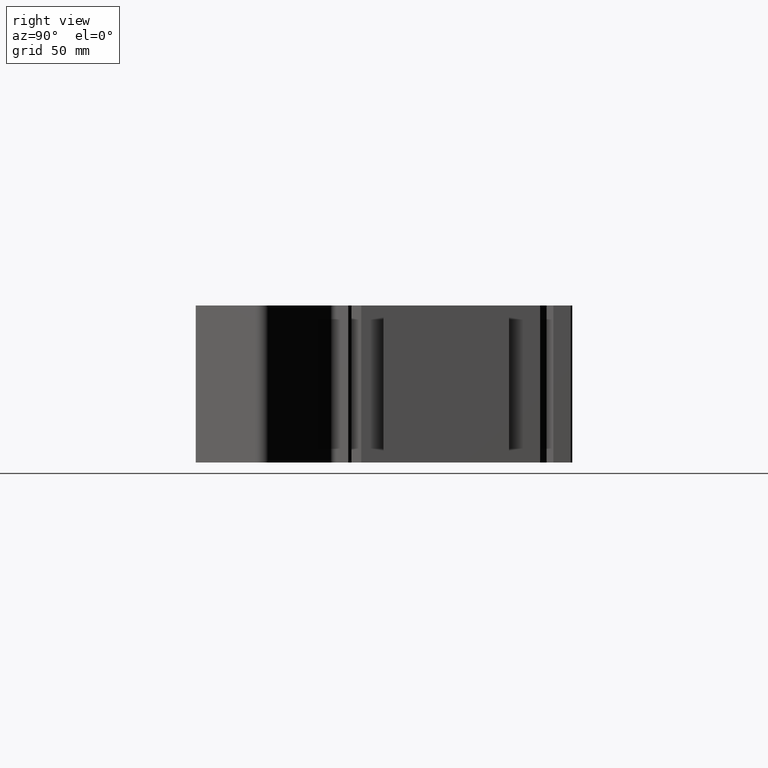
[diagram: clean part render]
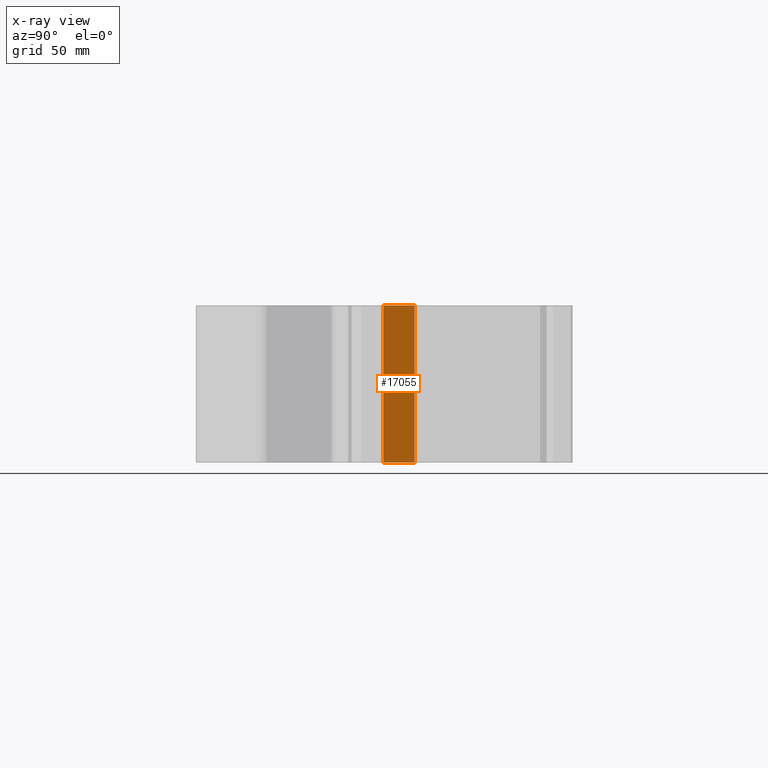
[diagram: x-ray — body ghosted, one internal face saturated and labeled with its STEP entity id]
A machine part, right view, then the same camera in x-ray: the body is ghosted and one INTERNAL B-rep face — a face not visible from any outside direction — is saturated and labeled: STEP entity #17055.
In plain terms, the highlighted planar face has unit normal (-1, -0, 0).
Its self-contained STEP definition (entity closure, byte-faithful):
#15972=DIRECTION('',(0.E0,-1.E0,0.E0));
#15973=VECTOR('',#15972,2.E1);
#15974=CARTESIAN_POINT('',(7.211265260376E0,6.114122744063E1,0.E0));
#15975=LINE('',#15974,#15973);
#15986=DIRECTION('',(0.E0,0.E0,1.E0));
#15987=VECTOR('',#15986,1.E2);
#15988=CARTESIAN_POINT('',(7.211265260376E0,4.114122744063E1,0.E0));
#15989=LINE('',#15988,#15987);
#16242=DIRECTION('',(0.E0,-1.E0,0.E0));
#16243=VECTOR('',#16242,2.E1);
#16244=CARTESIAN_POINT('',(7.211265260376E0,6.114122744063E1,1.E2));
#16245=LINE('',#16244,#16243);
#16249=DIRECTION('',(0.E0,0.E0,1.E0));
#16250=VECTOR('',#16249,1.E2);
#16251=CARTESIAN_POINT('',(7.211265260376E0,6.114122744063E1,0.E0));
#16252=LINE('',#16251,#16250);
#16350=CARTESIAN_POINT('',(7.211265260376E0,4.114122744063E1,0.E0));
#16352=VERTEX_POINT('',#16350);
#16394=CARTESIAN_POINT('',(7.211265260376E0,6.114122744063E1,0.E0));
#16395=VERTEX_POINT('',#16394);
#16396=CARTESIAN_POINT('',(7.211265260376E0,4.114122744063E1,1.E2));
#16398=VERTEX_POINT('',#16396);
#16431=CARTESIAN_POINT('',(7.211265260376E0,6.114122744063E1,1.E2));
#16432=VERTEX_POINT('',#16431);
#17044=CARTESIAN_POINT('',(7.211265260376E0,6.114122744063E1,0.E0));
#17045=DIRECTION('',(-1.E0,0.E0,0.E0));
#17046=DIRECTION('',(0.E0,-1.E0,0.E0));
#17047=AXIS2_PLACEMENT_3D('',#17044,#17045,#17046);
#17048=PLANE('',#17047);
#17049=ORIENTED_EDGE('',*,*,#16549,.T.);
#17050=ORIENTED_EDGE('',*,*,#16510,.F.);
#17051=ORIENTED_EDGE('',*,*,#16495,.F.);
#17052=ORIENTED_EDGE('',*,*,#17025,.T.);
#17053=EDGE_LOOP('',(#17049,#17050,#17051,#17052));
#17054=FACE_OUTER_BOUND('',#17053,.F.);
#17055=ADVANCED_FACE('',(#17054),#17048,.T.);
#16495=EDGE_CURVE('',#16395,#16352,#15975,.T.);
#16510=EDGE_CURVE('',#16352,#16398,#15989,.T.);
#16549=EDGE_CURVE('',#16432,#16398,#16245,.T.);
#17025=EDGE_CURVE('',#16395,#16432,#16252,.T.);